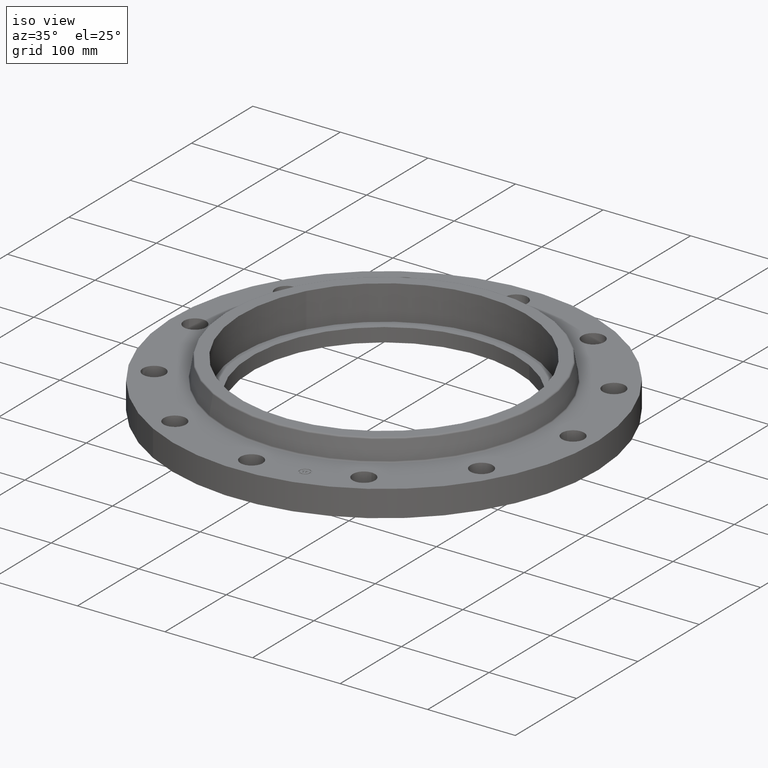
[diagram: clean part render]
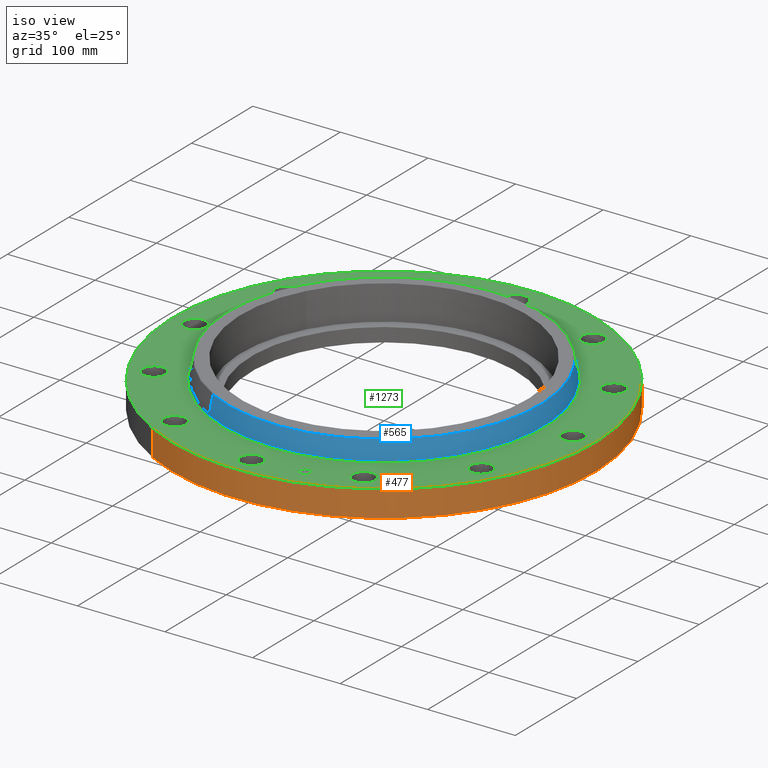
[diagram: same view with three faces highlighted in distinct colors, each labeled with its STEP entity id]
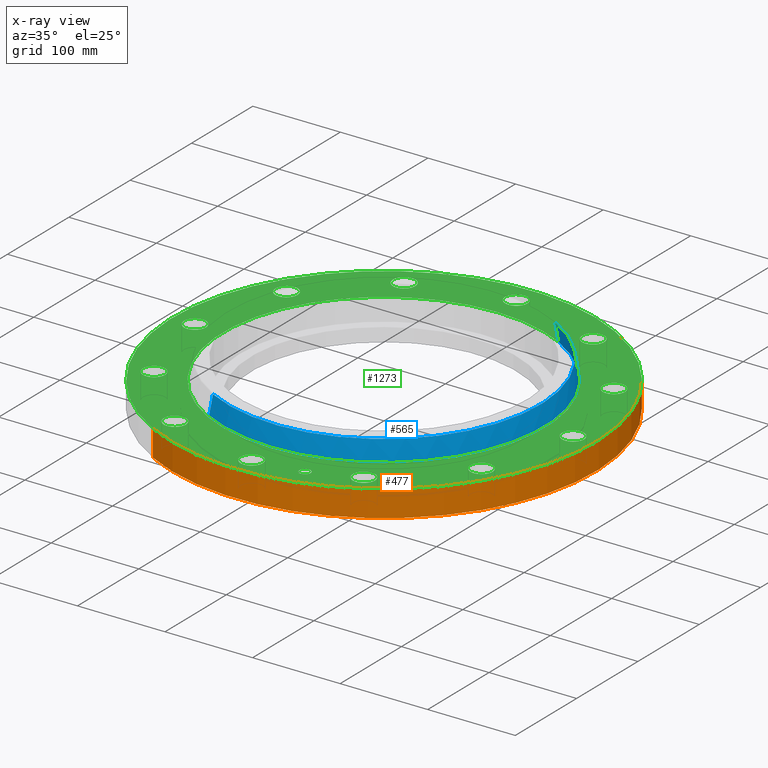
[diagram: x-ray of the same camera — body ghosted, the three highlighted faces saturated]
A machine part, iso view with three faces highlighted in distinct colors.
The next image is the same camera in x-ray (body ghosted, the three faces saturated) — at least one of them is partly hidden behind the body in this view.
Their STEP definitions:

[orange] entity #477 — the highlighted cylindrical surface (partial cylindrical patch) has radius 241.3 mm, axis along (0, 0, -1).
#207=AXIS2_PLACEMENT_3D('Circle Axis2P3D',#205,#206,$) ;
#438=AXIS2_PLACEMENT_3D('Cylinder Axis2P3D',#435,#436,#437) ;
#468=AXIS2_PLACEMENT_3D('Circle Axis2P3D',#466,#467,$) ;
#200=CARTESIAN_POINT('Vertex',(-4.55454261676,-8.33703433799,9.79094320929E-016)) ;
#202=CARTESIAN_POINT('Vertex',(4.55454261676,8.33703433799,9.79094320929E-016)) ;
#205=CARTESIAN_POINT('Axis2P3D Location',(0.,0.,0.)) ;
#435=CARTESIAN_POINT('Axis2P3D Location',(0.,0.,1.02875)) ;
#440=CARTESIAN_POINT('Line Origine',(-4.55454261676,-8.33703433799,0.595000000002)) ;
#444=CARTESIAN_POINT('Vertex',(-4.55454261676,-8.33703433799,1.19)) ;
#451=CARTESIAN_POINT('Vertex',(4.55454261676,8.33703433799,1.19)) ;
#454=CARTESIAN_POINT('Line Origine',(4.55454261676,8.33703433799,0.595000000002)) ;
#466=CARTESIAN_POINT('Axis2P3D Location',(0.,0.,1.19)) ;
#206=DIRECTION('Axis2P3D Direction',(0.,0.,-0.0393700787402)) ;
#436=DIRECTION('Axis2P3D Direction',(0.,0.,-0.0393700787402)) ;
#437=DIRECTION('Axis2P3D XDirection',(0.0188750212049,0.0345504945626,0.)) ;
#441=DIRECTION('Vector Direction',(0.,0.,-0.0393700787402)) ;
#455=DIRECTION('Vector Direction',(0.,0.,-0.0393700787402)) ;
#467=DIRECTION('Axis2P3D Direction',(0.,0.,-0.0393700787402)) ;
#442=VECTOR('Line Direction',#441,0.0393700787402) ;
#456=VECTOR('Line Direction',#455,0.0393700787402) ;
#472=ORIENTED_EDGE('',*,*,#209,.F.) ;
#473=ORIENTED_EDGE('',*,*,#458,.T.) ;
#474=ORIENTED_EDGE('',*,*,#470,.T.) ;
#475=ORIENTED_EDGE('',*,*,#446,.F.) ;
#477=ADVANCED_FACE('PartBody',(#476),#439,.T.) ;
#208=CIRCLE('generated circle',#207,9.50000000004) ;
#469=CIRCLE('generated circle',#468,9.50000000004) ;
#439=CYLINDRICAL_SURFACE('generated cylinder',#438,9.50000000004) ;
#209=EDGE_CURVE('',#203,#201,#208,.T.) ;
#446=EDGE_CURVE('',#201,#445,#443,.F.) ;
#458=EDGE_CURVE('',#203,#452,#457,.F.) ;
#470=EDGE_CURVE('',#452,#445,#469,.T.) ;
#471=EDGE_LOOP('',(#472,#473,#474,#475)) ;
#476=FACE_OUTER_BOUND('',#471,.T.) ;
#443=LINE('Line',#440,#442) ;
#457=LINE('Line',#454,#456) ;
#201=VERTEX_POINT('',#200) ;
#203=VERTEX_POINT('',#202) ;
#445=VERTEX_POINT('',#444) ;
#452=VERTEX_POINT('',#451) ;

[blue] entity #565 — the highlighted conical surface has half-angle 10 deg.
#501=AXIS2_PLACEMENT_3D('Circle Axis2P3D',#499,#500,$) ;
#538=AXIS2_PLACEMENT_3D('Cone Axis2P3D',#535,#536,#537) ;
#549=AXIS2_PLACEMENT_3D('Circle Axis2P3D',#547,#548,$) ;
#496=CARTESIAN_POINT('Vertex',(3.44287825089,6.30214636561,1.23958110934)) ;
#499=CARTESIAN_POINT('Axis2P3D Location',(0.,0.,1.23958110934)) ;
#503=CARTESIAN_POINT('Vertex',(-3.44287825089,-6.30214636561,1.23958110934)) ;
#535=CARTESIAN_POINT('Axis2P3D Location',(0.,0.,2.07041889067)) ;
#540=CARTESIAN_POINT('Line Origine',(3.40776054175,6.23786383021,1.65500000001)) ;
#544=CARTESIAN_POINT('Vertex',(3.37264283261,6.17358129481,2.07041889067)) ;
#547=CARTESIAN_POINT('Axis2P3D Location',(0.,0.,2.07041889067)) ;
#551=CARTESIAN_POINT('Vertex',(-3.37264283261,-6.17358129481,2.07041889067)) ;
#554=CARTESIAN_POINT('Line Origine',(-3.40776054175,-6.23786383021,1.65500000001)) ;
#500=DIRECTION('Axis2P3D Direction',(0.,0.,-0.0393700787402)) ;
#536=DIRECTION('Axis2P3D Direction',(0.,0.,-0.0393700787402)) ;
#537=DIRECTION('Axis2P3D XDirection',(-0.0188750212049,-0.0345504945626,0.)) ;
#541=DIRECTION('Vector Direction',(0.00327761303565,0.00599963041829,-0.03877195878)) ;
#548=DIRECTION('Axis2P3D Direction',(0.,0.,-0.0393700787402)) ;
#555=DIRECTION('Vector Direction',(-0.00327761303565,-0.00599963041829,-0.03877195878)) ;
#542=VECTOR('Line Direction',#541,0.0393700787402) ;
#556=VECTOR('Line Direction',#555,0.0393700787402) ;
#560=ORIENTED_EDGE('',*,*,#505,.F.) ;
#561=ORIENTED_EDGE('',*,*,#546,.T.) ;
#562=ORIENTED_EDGE('',*,*,#553,.T.) ;
#563=ORIENTED_EDGE('',*,*,#558,.F.) ;
#565=ADVANCED_FACE('PartBody',(#564),#539,.T.) ;
#502=CIRCLE('generated circle',#501,7.18125751272) ;
#550=CIRCLE('generated circle',#549,7.03475839528) ;
#539=CONICAL_SURFACE('Cone',#538,7.03475839528,0.174532925199) ;
#505=EDGE_CURVE('',#497,#504,#502,.T.) ;
#546=EDGE_CURVE('',#497,#545,#543,.F.) ;
#553=EDGE_CURVE('',#545,#552,#550,.T.) ;
#558=EDGE_CURVE('',#504,#552,#557,.F.) ;
#559=EDGE_LOOP('',(#560,#561,#562,#563)) ;
#564=FACE_OUTER_BOUND('',#559,.T.) ;
#543=LINE('Line',#540,#542) ;
#557=LINE('Line',#554,#556) ;
#497=VERTEX_POINT('',#496) ;
#504=VERTEX_POINT('',#503) ;
#545=VERTEX_POINT('',#544) ;
#552=VERTEX_POINT('',#551) ;

[green] entity #1273 — the highlighted planar face has unit normal (0, 0, -1).
#449=AXIS2_PLACEMENT_3D('Circle Axis2P3D',#447,#448,$) ;
#468=AXIS2_PLACEMENT_3D('Circle Axis2P3D',#466,#467,$) ;
#485=AXIS2_PLACEMENT_3D('Circle Axis2P3D',#483,#484,$) ;
#520=AXIS2_PLACEMENT_3D('Circle Axis2P3D',#518,#519,$) ;
#670=AXIS2_PLACEMENT_3D('Circle Axis2P3D',#668,#669,$) ;
#682=AXIS2_PLACEMENT_3D('Circle Axis2P3D',#680,#681,$) ;
#713=AXIS2_PLACEMENT_3D('Circle Axis2P3D',#711,#712,$) ;
#725=AXIS2_PLACEMENT_3D('Circle Axis2P3D',#723,#724,$) ;
#756=AXIS2_PLACEMENT_3D('Circle Axis2P3D',#754,#755,$) ;
#768=AXIS2_PLACEMENT_3D('Circle Axis2P3D',#766,#767,$) ;
#799=AXIS2_PLACEMENT_3D('Circle Axis2P3D',#797,#798,$) ;
#811=AXIS2_PLACEMENT_3D('Circle Axis2P3D',#809,#810,$) ;
#842=AXIS2_PLACEMENT_3D('Circle Axis2P3D',#840,#841,$) ;
#854=AXIS2_PLACEMENT_3D('Circle Axis2P3D',#852,#853,$) ;
#885=AXIS2_PLACEMENT_3D('Circle Axis2P3D',#883,#884,$) ;
#897=AXIS2_PLACEMENT_3D('Circle Axis2P3D',#895,#896,$) ;
#928=AXIS2_PLACEMENT_3D('Circle Axis2P3D',#926,#927,$) ;
#940=AXIS2_PLACEMENT_3D('Circle Axis2P3D',#938,#939,$) ;
#971=AXIS2_PLACEMENT_3D('Circle Axis2P3D',#969,#970,$) ;
#983=AXIS2_PLACEMENT_3D('Circle Axis2P3D',#981,#982,$) ;
#1014=AXIS2_PLACEMENT_3D('Circle Axis2P3D',#1012,#1013,$) ;
#1026=AXIS2_PLACEMENT_3D('Circle Axis2P3D',#1024,#1025,$) ;
#1057=AXIS2_PLACEMENT_3D('Circle Axis2P3D',#1055,#1056,$) ;
#1069=AXIS2_PLACEMENT_3D('Circle Axis2P3D',#1067,#1068,$) ;
#1100=AXIS2_PLACEMENT_3D('Circle Axis2P3D',#1098,#1099,$) ;
#1112=AXIS2_PLACEMENT_3D('Circle Axis2P3D',#1110,#1111,$) ;
#1143=AXIS2_PLACEMENT_3D('Circle Axis2P3D',#1141,#1142,$) ;
#1155=AXIS2_PLACEMENT_3D('Circle Axis2P3D',#1153,#1154,$) ;
#1197=AXIS2_PLACEMENT_3D('Plane Axis2P3D',#1194,#1195,#1196) ;
#1257=AXIS2_PLACEMENT_3D('Circle Axis2P3D',#1255,#1256,$) ;
#1266=AXIS2_PLACEMENT_3D('Circle Axis2P3D',#1264,#1265,$) ;
#444=CARTESIAN_POINT('Vertex',(-4.55454261676,-8.33703433799,1.19)) ;
#447=CARTESIAN_POINT('Axis2P3D Location',(0.,0.,1.19)) ;
#451=CARTESIAN_POINT('Vertex',(4.55454261676,8.33703433799,1.19)) ;
#466=CARTESIAN_POINT('Axis2P3D Location',(0.,0.,1.19)) ;
#483=CARTESIAN_POINT('Axis2P3D Location',(0.,0.,1.19)) ;
#487=CARTESIAN_POINT('Vertex',(3.47120677014,6.35400137226,1.19)) ;
#489=CARTESIAN_POINT('Vertex',(-3.47120677014,-6.35400137226,1.19)) ;
#518=CARTESIAN_POINT('Axis2P3D Location',(0.,0.,1.19)) ;
#658=CARTESIAN_POINT('Vertex',(7.86107671311,4.26179829266,1.19)) ;
#665=CARTESIAN_POINT('Vertex',(6.86135515129,4.23820170737,1.19)) ;
#668=CARTESIAN_POINT('Axis2P3D Location',(7.3612159322,4.25000000002,1.19)) ;
#680=CARTESIAN_POINT('Axis2P3D Location',(7.3612159322,4.25000000002,1.19)) ;
#701=CARTESIAN_POINT('Vertex',(4.67699298832,7.6213639438,1.19)) ;
#708=CARTESIAN_POINT('Vertex',(3.82300701172,7.10106792059,1.19)) ;
#711=CARTESIAN_POINT('Axis2P3D Location',(4.25000000002,7.3612159322,1.19)) ;
#723=CARTESIAN_POINT('Axis2P3D Location',(4.25000000002,7.3612159322,1.19)) ;
#744=CARTESIAN_POINT('Vertex',(0.239712769303,8.93879128098,1.19)) ;
#751=CARTESIAN_POINT('Vertex',(-0.239712769303,8.06120871909,1.19)) ;
#754=CARTESIAN_POINT('Axis2P3D Location',(-4.42459730714E-016,8.50000000003,1.19)) ;
#766=CARTESIAN_POINT('Axis2P3D Location',(-4.42459730714E-016,8.50000000003,1.19)) ;
#787=CARTESIAN_POINT('Vertex',(-4.26179829266,7.86107671311,1.19)) ;
#794=CARTESIAN_POINT('Vertex',(-4.23820170737,6.86135515129,1.19)) ;
#797=CARTESIAN_POINT('Axis2P3D Location',(-4.25000000002,7.3612159322,1.19)) ;
#809=CARTESIAN_POINT('Axis2P3D Location',(-4.25000000002,7.3612159322,1.19)) ;
#830=CARTESIAN_POINT('Vertex',(-7.6213639438,4.67699298832,1.19)) ;
#837=CARTESIAN_POINT('Vertex',(-7.10106792059,3.82300701172,1.19)) ;
#840=CARTESIAN_POINT('Axis2P3D Location',(-7.3612159322,4.25000000002,1.19)) ;
#852=CARTESIAN_POINT('Axis2P3D Location',(-7.3612159322,4.25000000002,1.19)) ;
#873=CARTESIAN_POINT('Vertex',(-8.93879128098,0.239712769303,1.19)) ;
#880=CARTESIAN_POINT('Vertex',(-8.06120871909,-0.239712769303,1.19)) ;
#883=CARTESIAN_POINT('Axis2P3D Location',(-8.50000000003,-1.04094977928E-015,1.19)) ;
#895=CARTESIAN_POINT('Axis2P3D Location',(-8.50000000003,-1.04094977928E-015,1.19)) ;
#916=CARTESIAN_POINT('Vertex',(-7.86107671311,-4.26179829266,1.19)) ;
#923=CARTESIAN_POINT('Vertex',(-6.86135515129,-4.23820170737,1.19)) ;
#926=CARTESIAN_POINT('Axis2P3D Location',(-7.3612159322,-4.25000000002,1.19)) ;
#938=CARTESIAN_POINT('Axis2P3D Location',(-7.3612159322,-4.25000000002,1.19)) ;
#959=CARTESIAN_POINT('Vertex',(-4.67699298832,-7.6213639438,1.19)) ;
#966=CARTESIAN_POINT('Vertex',(-3.82300701172,-7.10106792059,1.19)) ;
#969=CARTESIAN_POINT('Axis2P3D Location',(-4.25000000002,-7.3612159322,1.19)) ;
#981=CARTESIAN_POINT('Axis2P3D Location',(-4.25000000002,-7.3612159322,1.19)) ;
#1002=CARTESIAN_POINT('Vertex',(-0.239712769303,-8.93879128098,1.19)) ;
#1009=CARTESIAN_POINT('Vertex',(0.239712769303,-8.06120871909,1.19)) ;
#1012=CARTESIAN_POINT('Axis2P3D Location',(-5.98490048565E-016,-8.50000000003,1.19)) ;
#1024=CARTESIAN_POINT('Axis2P3D Location',(-5.98490048565E-016,-8.50000000003,1.19)) ;
#1045=CARTESIAN_POINT('Vertex',(4.26179829266,-7.86107671311,1.19)) ;
#1052=CARTESIAN_POINT('Vertex',(4.23820170737,-6.86135515129,1.19)) ;
#1055=CARTESIAN_POINT('Axis2P3D Location',(4.25000000002,-7.3612159322,1.19)) ;
#1067=CARTESIAN_POINT('Axis2P3D Location',(4.25000000002,-7.3612159322,1.19)) ;
#1088=CARTESIAN_POINT('Vertex',(7.6213639438,-4.67699298832,1.19)) ;
#1095=CARTESIAN_POINT('Vertex',(7.10106792059,-3.82300701172,1.19)) ;
#1098=CARTESIAN_POINT('Axis2P3D Location',(7.3612159322,-4.25000000002,1.19)) ;
#1110=CARTESIAN_POINT('Axis2P3D Location',(7.3612159322,-4.25000000002,1.19)) ;
#1131=CARTESIAN_POINT('Vertex',(8.06120871909,0.239712769303,1.19)) ;
#1138=CARTESIAN_POINT('Vertex',(8.93879128098,-0.239712769303,1.19)) ;
#1141=CARTESIAN_POINT('Axis2P3D Location',(8.50000000003,0.,1.19)) ;
#1153=CARTESIAN_POINT('Axis2P3D Location',(8.50000000003,0.,1.19)) ;
#1194=CARTESIAN_POINT('Axis2P3D Location',(0.,9.50000000004,1.19)) ;
#1255=CARTESIAN_POINT('Axis2P3D Location',(2.19996188338,-8.21036952349,1.19)) ;
#1259=CARTESIAN_POINT('Vertex',(2.43902852539,-8.14631180983,1.19)) ;
#1261=CARTESIAN_POINT('Vertex',(1.96089524137,-8.27442723715,1.19)) ;
#1264=CARTESIAN_POINT('Axis2P3D Location',(2.19996188338,-8.21036952349,1.19)) ;
#448=DIRECTION('Axis2P3D Direction',(0.,0.,-0.0393700787402)) ;
#467=DIRECTION('Axis2P3D Direction',(0.,0.,-0.0393700787402)) ;
#484=DIRECTION('Axis2P3D Direction',(0.,0.,-0.0393700787402)) ;
#519=DIRECTION('Axis2P3D Direction',(0.,0.,-0.0393700787402)) ;
#669=DIRECTION('Axis2P3D Direction',(0.,0.,-0.0393700787402)) ;
#681=DIRECTION('Axis2P3D Direction',(0.,0.,-0.0393700787402)) ;
#712=DIRECTION('Axis2P3D Direction',(0.,0.,-0.0393700787402)) ;
#724=DIRECTION('Axis2P3D Direction',(0.,0.,-0.0393700787402)) ;
#755=DIRECTION('Axis2P3D Direction',(0.,0.,-0.0393700787402)) ;
#767=DIRECTION('Axis2P3D Direction',(0.,0.,-0.0393700787402)) ;
#798=DIRECTION('Axis2P3D Direction',(0.,0.,-0.0393700787402)) ;
#810=DIRECTION('Axis2P3D Direction',(0.,0.,-0.0393700787402)) ;
#841=DIRECTION('Axis2P3D Direction',(0.,0.,-0.0393700787402)) ;
#853=DIRECTION('Axis2P3D Direction',(0.,0.,-0.0393700787402)) ;
#884=DIRECTION('Axis2P3D Direction',(-0.,0.,-0.0393700787402)) ;
#896=DIRECTION('Axis2P3D Direction',(-0.,0.,-0.0393700787402)) ;
#927=DIRECTION('Axis2P3D Direction',(-0.,0.,-0.0393700787402)) ;
#939=DIRECTION('Axis2P3D Direction',(-0.,0.,-0.0393700787402)) ;
#970=DIRECTION('Axis2P3D Direction',(-0.,0.,-0.0393700787402)) ;
#982=DIRECTION('Axis2P3D Direction',(-0.,0.,-0.0393700787402)) ;
#1013=DIRECTION('Axis2P3D Direction',(0.,-0.,-0.0393700787402)) ;
#1025=DIRECTION('Axis2P3D Direction',(0.,-0.,-0.0393700787402)) ;
#1056=DIRECTION('Axis2P3D Direction',(0.,-0.,-0.0393700787402)) ;
#1068=DIRECTION('Axis2P3D Direction',(0.,-0.,-0.0393700787402)) ;
#1099=DIRECTION('Axis2P3D Direction',(0.,-0.,-0.0393700787402)) ;
#1111=DIRECTION('Axis2P3D Direction',(0.,-0.,-0.0393700787402)) ;
#1142=DIRECTION('Axis2P3D Direction',(0.,-0.,-0.0393700787402)) ;
#1154=DIRECTION('Axis2P3D Direction',(0.,-0.,-0.0393700787402)) ;
#1195=DIRECTION('Axis2P3D Direction',(0.,0.,-0.0393700787402)) ;
#1196=DIRECTION('Axis2P3D XDirection',(0.0393700787402,0.,0.)) ;
#1256=DIRECTION('Axis2P3D Direction',(0.,0.,-0.0393700787402)) ;
#1265=DIRECTION('Axis2P3D Direction',(0.,0.,-0.0393700787402)) ;
#1200=ORIENTED_EDGE('',*,*,#470,.F.) ;
#1201=ORIENTED_EDGE('',*,*,#453,.F.) ;
#1204=ORIENTED_EDGE('',*,*,#1145,.T.) ;
#1205=ORIENTED_EDGE('',*,*,#1157,.T.) ;
#1208=ORIENTED_EDGE('',*,*,#522,.T.) ;
#1209=ORIENTED_EDGE('',*,*,#491,.T.) ;
#1212=ORIENTED_EDGE('',*,*,#1102,.T.) ;
#1213=ORIENTED_EDGE('',*,*,#1114,.T.) ;
#1216=ORIENTED_EDGE('',*,*,#1059,.T.) ;
#1217=ORIENTED_EDGE('',*,*,#1071,.T.) ;
#1220=ORIENTED_EDGE('',*,*,#1016,.T.) ;
#1221=ORIENTED_EDGE('',*,*,#1028,.T.) ;
#1224=ORIENTED_EDGE('',*,*,#973,.T.) ;
#1225=ORIENTED_EDGE('',*,*,#985,.T.) ;
#1228=ORIENTED_EDGE('',*,*,#930,.T.) ;
#1229=ORIENTED_EDGE('',*,*,#942,.T.) ;
#1232=ORIENTED_EDGE('',*,*,#887,.T.) ;
#1233=ORIENTED_EDGE('',*,*,#899,.T.) ;
#1236=ORIENTED_EDGE('',*,*,#844,.T.) ;
#1237=ORIENTED_EDGE('',*,*,#856,.T.) ;
#1240=ORIENTED_EDGE('',*,*,#801,.T.) ;
#1241=ORIENTED_EDGE('',*,*,#813,.T.) ;
#1244=ORIENTED_EDGE('',*,*,#758,.T.) ;
#1245=ORIENTED_EDGE('',*,*,#770,.T.) ;
#1248=ORIENTED_EDGE('',*,*,#715,.T.) ;
#1249=ORIENTED_EDGE('',*,*,#727,.T.) ;
#1252=ORIENTED_EDGE('',*,*,#672,.T.) ;
#1253=ORIENTED_EDGE('',*,*,#684,.T.) ;
#1270=ORIENTED_EDGE('',*,*,#1263,.T.) ;
#1271=ORIENTED_EDGE('',*,*,#1268,.T.) ;
#1206=FACE_BOUND('',#1203,.T.) ;
#1210=FACE_BOUND('',#1207,.T.) ;
#1214=FACE_BOUND('',#1211,.T.) ;
#1218=FACE_BOUND('',#1215,.T.) ;
#1222=FACE_BOUND('',#1219,.T.) ;
#1226=FACE_BOUND('',#1223,.T.) ;
#1230=FACE_BOUND('',#1227,.T.) ;
#1234=FACE_BOUND('',#1231,.T.) ;
#1238=FACE_BOUND('',#1235,.T.) ;
#1242=FACE_BOUND('',#1239,.T.) ;
#1246=FACE_BOUND('',#1243,.T.) ;
#1250=FACE_BOUND('',#1247,.T.) ;
#1254=FACE_BOUND('',#1251,.T.) ;
#1272=FACE_BOUND('',#1269,.T.) ;
#1273=ADVANCED_FACE('PartBody',(#1202,#1206,#1210,#1214,#1218,#1222,#1226,#1230,#1234,#1238,#1242,#1246,#1250,#1254,#1272),#1198,.F.) ;
#450=CIRCLE('generated circle',#449,9.50000000004) ;
#469=CIRCLE('generated circle',#468,9.50000000004) ;
#486=CIRCLE('generated circle',#485,7.2403459779) ;
#521=CIRCLE('generated circle',#520,7.2403459779) ;
#671=CIRCLE('generated circle',#670,0.500000000002) ;
#683=CIRCLE('generated circle',#682,0.500000000002) ;
#714=CIRCLE('generated circle',#713,0.500000000002) ;
#726=CIRCLE('generated circle',#725,0.500000000002) ;
#757=CIRCLE('generated circle',#756,0.500000000002) ;
#769=CIRCLE('generated circle',#768,0.500000000002) ;
#800=CIRCLE('generated circle',#799,0.500000000002) ;
#812=CIRCLE('generated circle',#811,0.500000000002) ;
#843=CIRCLE('generated circle',#842,0.500000000002) ;
#855=CIRCLE('generated circle',#854,0.500000000002) ;
#886=CIRCLE('generated circle',#885,0.500000000002) ;
#898=CIRCLE('generated circle',#897,0.500000000002) ;
#929=CIRCLE('generated circle',#928,0.500000000002) ;
#941=CIRCLE('generated circle',#940,0.500000000002) ;
#972=CIRCLE('generated circle',#971,0.500000000002) ;
#984=CIRCLE('generated circle',#983,0.500000000002) ;
#1015=CIRCLE('generated circle',#1014,0.500000000002) ;
#1027=CIRCLE('generated circle',#1026,0.500000000002) ;
#1058=CIRCLE('generated circle',#1057,0.500000000002) ;
#1070=CIRCLE('generated circle',#1069,0.500000000002) ;
#1101=CIRCLE('generated circle',#1100,0.500000000002) ;
#1113=CIRCLE('generated circle',#1112,0.500000000002) ;
#1144=CIRCLE('generated circle',#1143,0.500000000002) ;
#1156=CIRCLE('generated circle',#1155,0.500000000002) ;
#1258=CIRCLE('generated circle',#1257,0.247500000001) ;
#1267=CIRCLE('generated circle',#1266,0.247500000001) ;
#453=EDGE_CURVE('',#445,#452,#450,.T.) ;
#470=EDGE_CURVE('',#452,#445,#469,.T.) ;
#491=EDGE_CURVE('',#488,#490,#486,.T.) ;
#522=EDGE_CURVE('',#490,#488,#521,.T.) ;
#672=EDGE_CURVE('',#659,#666,#671,.T.) ;
#684=EDGE_CURVE('',#666,#659,#683,.T.) ;
#715=EDGE_CURVE('',#702,#709,#714,.T.) ;
#727=EDGE_CURVE('',#709,#702,#726,.T.) ;
#758=EDGE_CURVE('',#745,#752,#757,.T.) ;
#770=EDGE_CURVE('',#752,#745,#769,.T.) ;
#801=EDGE_CURVE('',#788,#795,#800,.T.) ;
#813=EDGE_CURVE('',#795,#788,#812,.T.) ;
#844=EDGE_CURVE('',#831,#838,#843,.T.) ;
#856=EDGE_CURVE('',#838,#831,#855,.T.) ;
#887=EDGE_CURVE('',#874,#881,#886,.T.) ;
#899=EDGE_CURVE('',#881,#874,#898,.T.) ;
#930=EDGE_CURVE('',#917,#924,#929,.T.) ;
#942=EDGE_CURVE('',#924,#917,#941,.T.) ;
#973=EDGE_CURVE('',#960,#967,#972,.T.) ;
#985=EDGE_CURVE('',#967,#960,#984,.T.) ;
#1016=EDGE_CURVE('',#1003,#1010,#1015,.T.) ;
#1028=EDGE_CURVE('',#1010,#1003,#1027,.T.) ;
#1059=EDGE_CURVE('',#1046,#1053,#1058,.T.) ;
#1071=EDGE_CURVE('',#1053,#1046,#1070,.T.) ;
#1102=EDGE_CURVE('',#1089,#1096,#1101,.T.) ;
#1114=EDGE_CURVE('',#1096,#1089,#1113,.T.) ;
#1145=EDGE_CURVE('',#1132,#1139,#1144,.T.) ;
#1157=EDGE_CURVE('',#1139,#1132,#1156,.T.) ;
#1263=EDGE_CURVE('',#1260,#1262,#1258,.T.) ;
#1268=EDGE_CURVE('',#1262,#1260,#1267,.T.) ;
#1199=EDGE_LOOP('',(#1200,#1201)) ;
#1203=EDGE_LOOP('',(#1204,#1205)) ;
#1207=EDGE_LOOP('',(#1208,#1209)) ;
#1211=EDGE_LOOP('',(#1212,#1213)) ;
#1215=EDGE_LOOP('',(#1216,#1217)) ;
#1219=EDGE_LOOP('',(#1220,#1221)) ;
#1223=EDGE_LOOP('',(#1224,#1225)) ;
#1227=EDGE_LOOP('',(#1228,#1229)) ;
#1231=EDGE_LOOP('',(#1232,#1233)) ;
#1235=EDGE_LOOP('',(#1236,#1237)) ;
#1239=EDGE_LOOP('',(#1240,#1241)) ;
#1243=EDGE_LOOP('',(#1244,#1245)) ;
#1247=EDGE_LOOP('',(#1248,#1249)) ;
#1251=EDGE_LOOP('',(#1252,#1253)) ;
#1269=EDGE_LOOP('',(#1270,#1271)) ;
#1202=FACE_OUTER_BOUND('',#1199,.T.) ;
#1198=PLANE('',#1197) ;
#445=VERTEX_POINT('',#444) ;
#452=VERTEX_POINT('',#451) ;
#488=VERTEX_POINT('',#487) ;
#490=VERTEX_POINT('',#489) ;
#659=VERTEX_POINT('',#658) ;
#666=VERTEX_POINT('',#665) ;
#702=VERTEX_POINT('',#701) ;
#709=VERTEX_POINT('',#708) ;
#745=VERTEX_POINT('',#744) ;
#752=VERTEX_POINT('',#751) ;
#788=VERTEX_POINT('',#787) ;
#795=VERTEX_POINT('',#794) ;
#831=VERTEX_POINT('',#830) ;
#838=VERTEX_POINT('',#837) ;
#874=VERTEX_POINT('',#873) ;
#881=VERTEX_POINT('',#880) ;
#917=VERTEX_POINT('',#916) ;
#924=VERTEX_POINT('',#923) ;
#960=VERTEX_POINT('',#959) ;
#967=VERTEX_POINT('',#966) ;
#1003=VERTEX_POINT('',#1002) ;
#1010=VERTEX_POINT('',#1009) ;
#1046=VERTEX_POINT('',#1045) ;
#1053=VERTEX_POINT('',#1052) ;
#1089=VERTEX_POINT('',#1088) ;
#1096=VERTEX_POINT('',#1095) ;
#1132=VERTEX_POINT('',#1131) ;
#1139=VERTEX_POINT('',#1138) ;
#1260=VERTEX_POINT('',#1259) ;
#1262=VERTEX_POINT('',#1261) ;